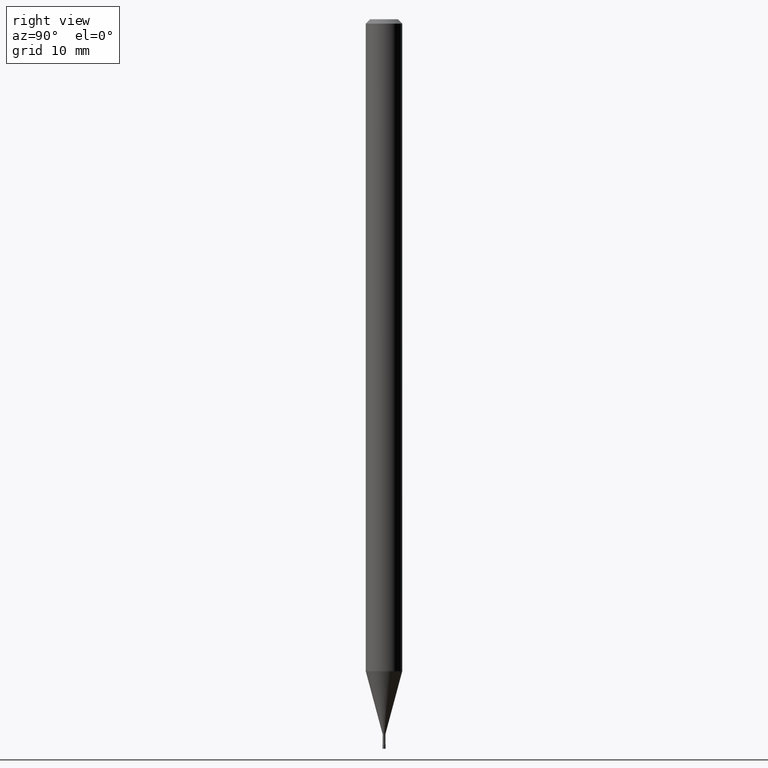
[diagram: clean part render]
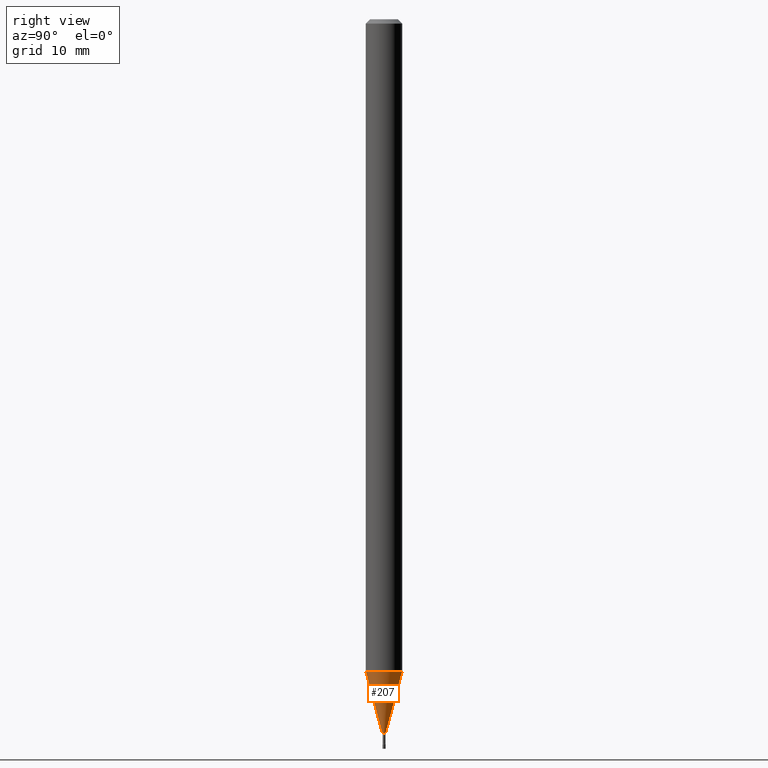
[diagram: same view with one face highlighted and labeled with its STEP entity id]
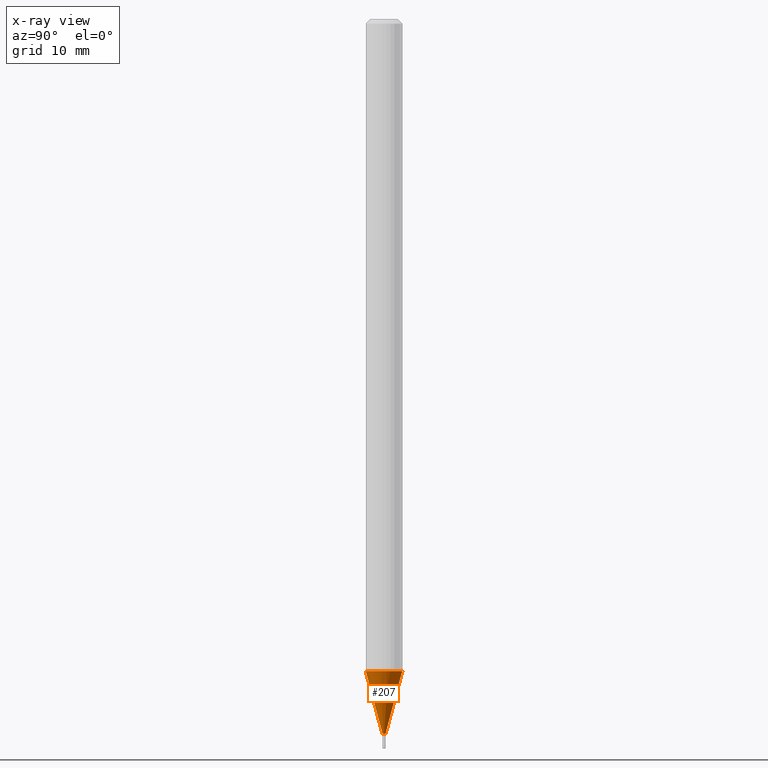
[diagram: x-ray of the same camera — body ghosted, the highlighted face saturated]
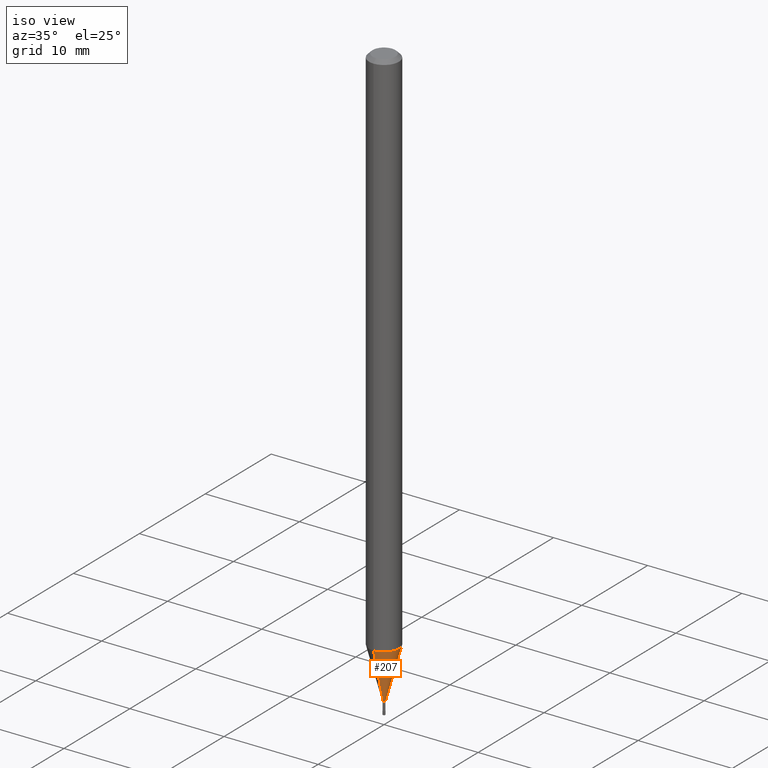
[diagram: same view with one face highlighted and labeled with its STEP entity id]
A machine part, right view. The second image highlights one B-rep face of the part: STEP entity #207.
The next image is the same camera in x-ray: the body ghosted, the highlighted face saturated — about 0% of this face is hidden behind the body in this view.
A second angle (iso view) of the same face is appended — the face is thin or edge-on in the first view.
In plain terms, the highlighted conical surface has half-angle 15 deg.
Its self-contained STEP definition (entity closure, byte-faithful):
#9 = EDGE_CURVE ( 'NONE', #297, #431, #255, .T. ) ;
#21 = DIRECTION ( 'NONE',  ( -2.444331714462359119E-29, 3.493109718909404657E-15, 1.000000000000000000 ) ) ;
#30 = CARTESIAN_POINT ( 'NONE',  ( 2.405581959610007950E-16, 0.005211112605655434174, -2.448092501787273001 ) ) ;
#60 = ORIENTED_EDGE ( 'NONE', *, *, #240, .T. ) ;
#62 = DIRECTION ( 'NONE',  ( -6.982962677686265922E-15, -1.000000000000000000, 0.000000000000000000 ) ) ;
#85 = DIRECTION ( 'NONE',  ( 1.839019923739597949E-15, 0.2588190451025246253, 0.9659258262890670910 ) ) ;
#105 = DIRECTION ( 'NONE',  ( -6.982962677686265922E-15, -1.000000000000000000, 4.370956789862821150E-15 ) ) ;
#119 = DIRECTION ( 'NONE',  ( -6.982962677686265922E-15, -1.000000000000000000, 0.000000000000000000 ) ) ;
#139 = LINE ( 'NONE', #183, #175 ) ;
#144 = DIRECTION ( 'NONE',  ( -2.444331714462359119E-29, 3.493109718909404657E-15, 1.000000000000000000 ) ) ;
#149 = CARTESIAN_POINT ( 'NONE',  ( -4.364351673553370901E-16, -0.06250000000000781319, -2.234287463322519152 ) ) ;
#152 = VERTEX_POINT ( 'NONE', #30 ) ;
#174 = CARTESIAN_POINT ( 'NONE',  ( 4.440892098501170476E-16, 0.06249999999999218681, -2.234287463322519596 ) ) ;
#175 = VECTOR ( 'NONE', #458, 39.37007874015748143 ) ;
#180 = ORIENTED_EDGE ( 'NONE', *, *, #354, .T. ) ;
#183 = CARTESIAN_POINT ( 'NONE',  ( -3.638900483451220324E-17, -0.005211112605672538547, -2.448092501787273001 ) ) ;
#187 = CARTESIAN_POINT ( 'NONE',  ( 5.461339705824889483E-29, -7.804611252969332594E-15, -2.234287463322519596 ) ) ;
#199 = AXIS2_PLACEMENT_3D ( 'NONE', #187, #21, #105 ) ;
#205 = AXIS2_PLACEMENT_3D ( 'NONE', #502, #144, #62 ) ;
#207 = ADVANCED_FACE ( 'NONE', ( #401 ), #395, .T. ) ;
#211 = ORIENTED_EDGE ( 'NONE', *, *, #516, .F. ) ;
#240 = EDGE_CURVE ( 'NONE', #152, #431, #369, .T. ) ;
#247 = CARTESIAN_POINT ( 'NONE',  ( 5.983950142056131957E-29, -8.551455710782364148E-15, -2.448092501787273001 ) ) ;
#253 = VERTEX_POINT ( 'NONE', #488 ) ;
#255 = CIRCLE ( 'NONE', #199, 0.06250000000000000000 ) ;
#269 = ORIENTED_EDGE ( 'NONE', *, *, #9, .F. ) ;
#297 = VERTEX_POINT ( 'NONE', #149 ) ;
#303 = AXIS2_PLACEMENT_3D ( 'NONE', #247, #397, #119 ) ;
#354 = EDGE_CURVE ( 'NONE', #253, #152, #356, .T. ) ;
#356 = CIRCLE ( 'NONE', #205, 0.005211112605663986361 ) ;
#369 = LINE ( 'NONE', #404, #508 ) ;
#395 = CONICAL_SURFACE ( 'NONE', #303, 0.005211112605663986361, 0.2617993877991499629 ) ;
#397 = DIRECTION ( 'NONE',  ( -2.444331714462359119E-29, 3.493109718909404657E-15, 1.000000000000000000 ) ) ;
#401 = FACE_OUTER_BOUND ( 'NONE', #505, .T. ) ;
#404 = CARTESIAN_POINT ( 'NONE',  ( 3.702718207188416037E-17, 0.005211112605655434174, -2.448092501787273001 ) ) ;
#431 = VERTEX_POINT ( 'NONE', #174 ) ;
#458 = DIRECTION ( 'NONE',  ( -1.807323732225328167E-15, -0.2588190451025179084, 0.9659258262890690894 ) ) ;
#488 = CARTESIAN_POINT ( 'NONE',  ( -3.638900483451220324E-17, -0.005211112605672538547, -2.448092501787273001 ) ) ;
#502 = CARTESIAN_POINT ( 'NONE',  ( 5.983950142056131957E-29, -8.551455710782364148E-15, -2.448092501787273001 ) ) ;
#505 = EDGE_LOOP ( 'NONE', ( #180, #60, #269, #211 ) ) ;
#508 = VECTOR ( 'NONE', #85, 39.37007874015748854 ) ;
#516 = EDGE_CURVE ( 'NONE', #253, #297, #139, .T. ) ;